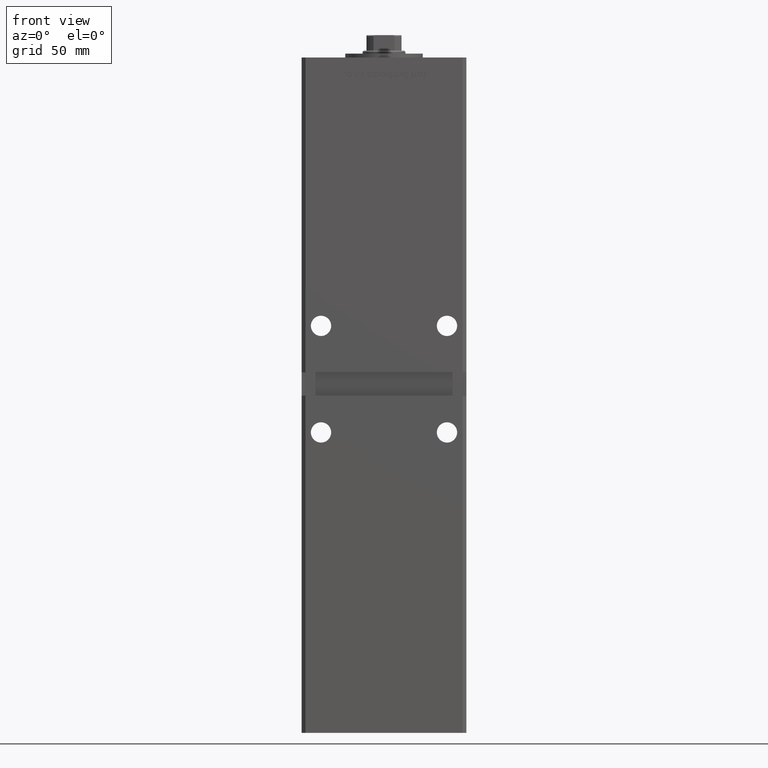
[diagram: clean part render]
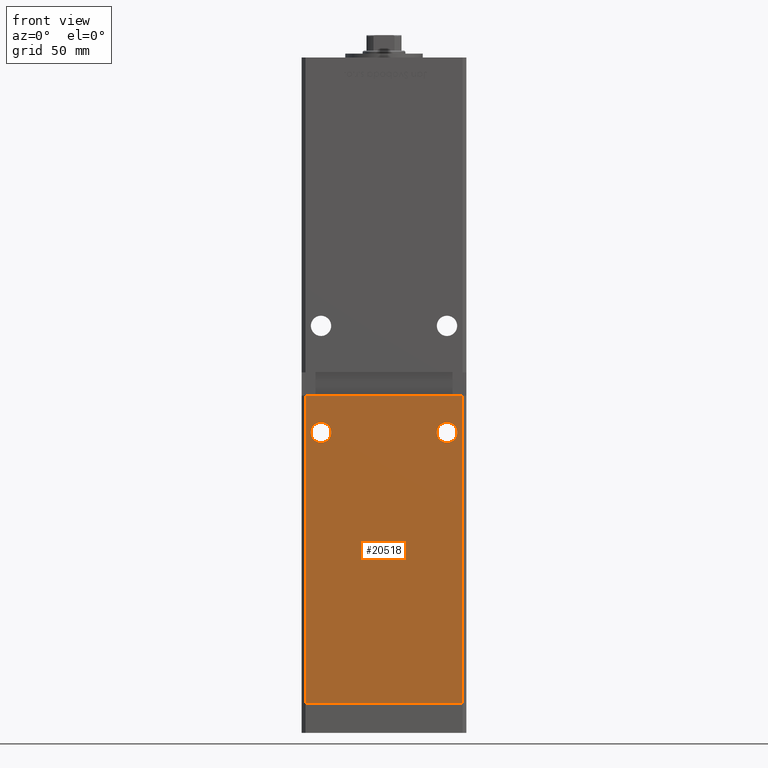
[diagram: same view with one face highlighted and labeled with its STEP entity id]
A machine part, front view. The second image highlights one B-rep face of the part: STEP entity #20518.
In plain terms, the highlighted planar face has unit normal (0, 1, 0).
Its self-contained STEP definition (entity closure, byte-faithful):
#1432 = EDGE_CURVE ( 'NONE', #5622, #8029, #32566, .T. ) ;
#2587 = CARTESIAN_POINT ( 'NONE',  ( -32.50000000000000000, -37.50000000000000711, 140.0000000000000000 ) ) ;
#4200 = ORIENTED_EDGE ( 'NONE', *, *, #12526, .T. ) ;
#5126 = CARTESIAN_POINT ( 'NONE',  ( -32.50000000000000000, -37.50000000000000711, 134.7500000000000000 ) ) ;
#5508 = VECTOR ( 'NONE', #29942, 1000.000000000000000 ) ;
#5622 = VERTEX_POINT ( 'NONE', #18144 ) ;
#6111 = VERTEX_POINT ( 'NONE', #10269 ) ;
#6149 = EDGE_LOOP ( 'NONE', ( #53112, #24794, #4200, #22101 ) ) ;
#6847 = EDGE_LOOP ( 'NONE', ( #52999, #24720 ) ) ;
#7154 = EDGE_CURVE ( 'NONE', #6111, #26656, #28509, .T. ) ;
#7193 = PLANE ( 'NONE',  #24709 ) ;
#7971 = DIRECTION ( 'NONE',  ( 0.000000000000000000, 0.000000000000000000, 1.000000000000000000 ) ) ;
#8029 = VERTEX_POINT ( 'NONE', #25391 ) ;
#10269 = CARTESIAN_POINT ( 'NONE',  ( 32.50000000000000000, -37.50000000000000711, 145.2500000000000284 ) ) ;
#11231 = LINE ( 'NONE', #35406, #32579 ) ;
#12526 = EDGE_CURVE ( 'NONE', #5622, #15230, #11231, .T. ) ;
#12827 = EDGE_CURVE ( 'NONE', #24113, #17168, #31462, .T. ) ;
#15230 = VERTEX_POINT ( 'NONE', #51562 ) ;
#15928 = CARTESIAN_POINT ( 'NONE',  ( -42.49999999999998579, -37.50000000000000711, 159.0000000000000568 ) ) ;
#16060 = DIRECTION ( 'NONE',  ( 0.000000000000000000, -0.000000000000000000, 1.000000000000000000 ) ) ;
#16502 = DIRECTION ( 'NONE',  ( 0.000000000000000000, 1.000000000000000000, 0.000000000000000000 ) ) ;
#17168 = VERTEX_POINT ( 'NONE', #43330 ) ;
#18144 = CARTESIAN_POINT ( 'NONE',  ( -40.49999999999998579, -37.50000000000000711, 159.0000000000000568 ) ) ;
#18897 = VECTOR ( 'NONE', #49531, 1000.000000000000000 ) ;
#18964 = DIRECTION ( 'NONE',  ( 0.000000000000000000, 1.000000000000000000, 0.000000000000000000 ) ) ;
#19511 = CARTESIAN_POINT ( 'NONE',  ( 32.50000000000000000, -37.50000000000000711, 140.0000000000000000 ) ) ;
#19817 = CIRCLE ( 'NONE', #49861, 5.250000000000004441 ) ;
#20518 = ADVANCED_FACE ( 'NONE', ( #24099, #49114, #40498 ), #7193, .F. ) ;
#20780 = LINE ( 'NONE', #21558, #18897 ) ;
#21558 = CARTESIAN_POINT ( 'NONE',  ( 40.49999999999998579, -37.50000000000000711, 318.5000000000000000 ) ) ;
#22101 = ORIENTED_EDGE ( 'NONE', *, *, #41055, .T. ) ;
#22203 = CARTESIAN_POINT ( 'NONE',  ( 32.50000000000000000, -37.50000000000000711, 134.7500000000000000 ) ) ;
#22783 = DIRECTION ( 'NONE',  ( 0.000000000000000000, 1.000000000000000000, 0.000000000000000000 ) ) ;
#23553 = ORIENTED_EDGE ( 'NONE', *, *, #29490, .T. ) ;
#23585 = DIRECTION ( 'NONE',  ( -0.000000000000000000, -0.000000000000000000, -1.000000000000000000 ) ) ;
#24099 = FACE_BOUND ( 'NONE', #6847, .T. ) ;
#24113 = VERTEX_POINT ( 'NONE', #5126 ) ;
#24709 = AXIS2_PLACEMENT_3D ( 'NONE', #53156, #52889, #16060 ) ;
#24720 = ORIENTED_EDGE ( 'NONE', *, *, #12827, .T. ) ;
#24794 = ORIENTED_EDGE ( 'NONE', *, *, #1432, .F. ) ;
#25391 = CARTESIAN_POINT ( 'NONE',  ( 40.49999999999998579, -37.50000000000000711, 159.0000000000000568 ) ) ;
#25868 = CARTESIAN_POINT ( 'NONE',  ( -32.50000000000000000, -37.50000000000000711, 140.0000000000000000 ) ) ;
#26656 = VERTEX_POINT ( 'NONE', #22203 ) ;
#26917 = EDGE_CURVE ( 'NONE', #8029, #40580, #20780, .T. ) ;
#27086 = DIRECTION ( 'NONE',  ( 0.000000000000000000, 0.000000000000000000, 1.000000000000000000 ) ) ;
#27343 = CARTESIAN_POINT ( 'NONE',  ( 32.50000000000000000, -37.50000000000000711, 140.0000000000000000 ) ) ;
#28509 = CIRCLE ( 'NONE', #31910, 5.250000000000004441 ) ;
#29490 = EDGE_CURVE ( 'NONE', #26656, #6111, #19817, .T. ) ;
#29942 = DIRECTION ( 'NONE',  ( 1.000000000000000000, 0.000000000000000000, 0.000000000000000000 ) ) ;
#29992 = VECTOR ( 'NONE', #52757, 1000.000000000000000 ) ;
#30323 = EDGE_LOOP ( 'NONE', ( #46403, #23553 ) ) ;
#31462 = CIRCLE ( 'NONE', #46954, 5.250000000000004441 ) ;
#31646 = CARTESIAN_POINT ( 'NONE',  ( 40.49999999999998579, -37.50000000000000711, 0.000000000000000000 ) ) ;
#31910 = AXIS2_PLACEMENT_3D ( 'NONE', #27343, #22783, #27086 ) ;
#32566 = LINE ( 'NONE', #15928, #29992 ) ;
#32579 = VECTOR ( 'NONE', #23585, 1000.000000000000000 ) ;
#32817 = AXIS2_PLACEMENT_3D ( 'NONE', #25868, #16502, #50079 ) ;
#33449 = LINE ( 'NONE', #45838, #5508 ) ;
#35339 = DIRECTION ( 'NONE',  ( 0.000000000000000000, 0.000000000000000000, 1.000000000000000000 ) ) ;
#35406 = CARTESIAN_POINT ( 'NONE',  ( -40.49999999999998579, -37.50000000000000711, 318.5000000000000000 ) ) ;
#36357 = EDGE_CURVE ( 'NONE', #17168, #24113, #41398, .T. ) ;
#40498 = FACE_OUTER_BOUND ( 'NONE', #6149, .T. ) ;
#40580 = VERTEX_POINT ( 'NONE', #31646 ) ;
#41055 = EDGE_CURVE ( 'NONE', #15230, #40580, #33449, .T. ) ;
#41398 = CIRCLE ( 'NONE', #32817, 5.250000000000004441 ) ;
#43330 = CARTESIAN_POINT ( 'NONE',  ( -32.50000000000000000, -37.50000000000000711, 145.2500000000000284 ) ) ;
#45838 = CARTESIAN_POINT ( 'NONE',  ( -40.49999999999998579, -37.50000000000000711, 0.000000000000000000 ) ) ;
#46403 = ORIENTED_EDGE ( 'NONE', *, *, #7154, .T. ) ;
#46954 = AXIS2_PLACEMENT_3D ( 'NONE', #2587, #18964, #35339 ) ;
#49114 = FACE_BOUND ( 'NONE', #30323, .T. ) ;
#49531 = DIRECTION ( 'NONE',  ( -0.000000000000000000, -0.000000000000000000, -1.000000000000000000 ) ) ;
#49861 = AXIS2_PLACEMENT_3D ( 'NONE', #19511, #52313, #7971 ) ;
#50079 = DIRECTION ( 'NONE',  ( 0.000000000000000000, 0.000000000000000000, 1.000000000000000000 ) ) ;
#51562 = CARTESIAN_POINT ( 'NONE',  ( -40.49999999999998579, -37.50000000000000711, 0.000000000000000000 ) ) ;
#52313 = DIRECTION ( 'NONE',  ( 0.000000000000000000, 1.000000000000000000, 0.000000000000000000 ) ) ;
#52757 = DIRECTION ( 'NONE',  ( 1.000000000000000000, 0.000000000000000000, 0.000000000000000000 ) ) ;
#52889 = DIRECTION ( 'NONE',  ( 0.000000000000000000, 1.000000000000000000, 0.000000000000000000 ) ) ;
#52999 = ORIENTED_EDGE ( 'NONE', *, *, #36357, .T. ) ;
#53112 = ORIENTED_EDGE ( 'NONE', *, *, #26917, .F. ) ;
#53156 = CARTESIAN_POINT ( 'NONE',  ( -40.49999999999998579, -37.50000000000000711, 318.5000000000000000 ) ) ;